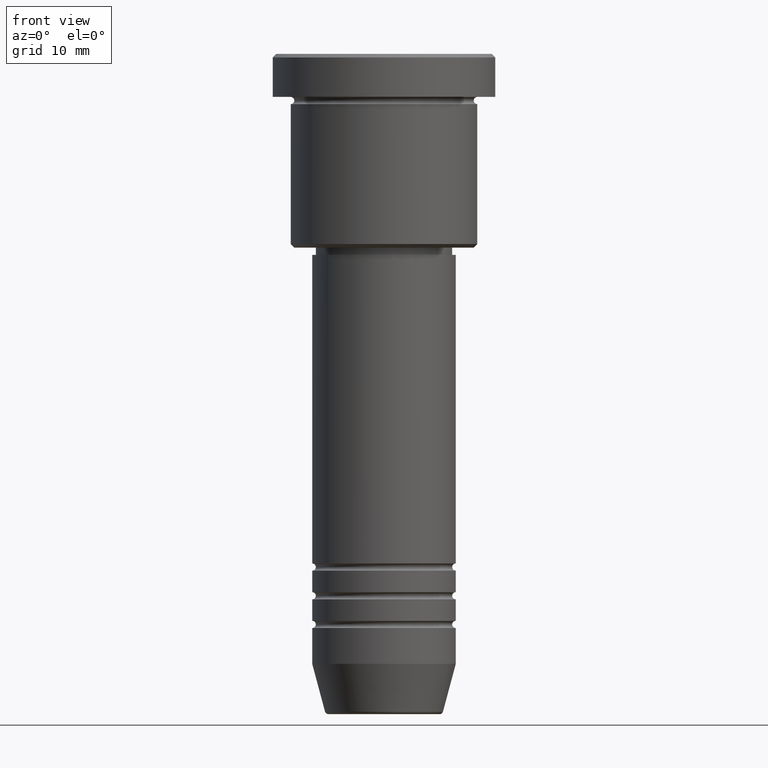
[diagram: clean part render]
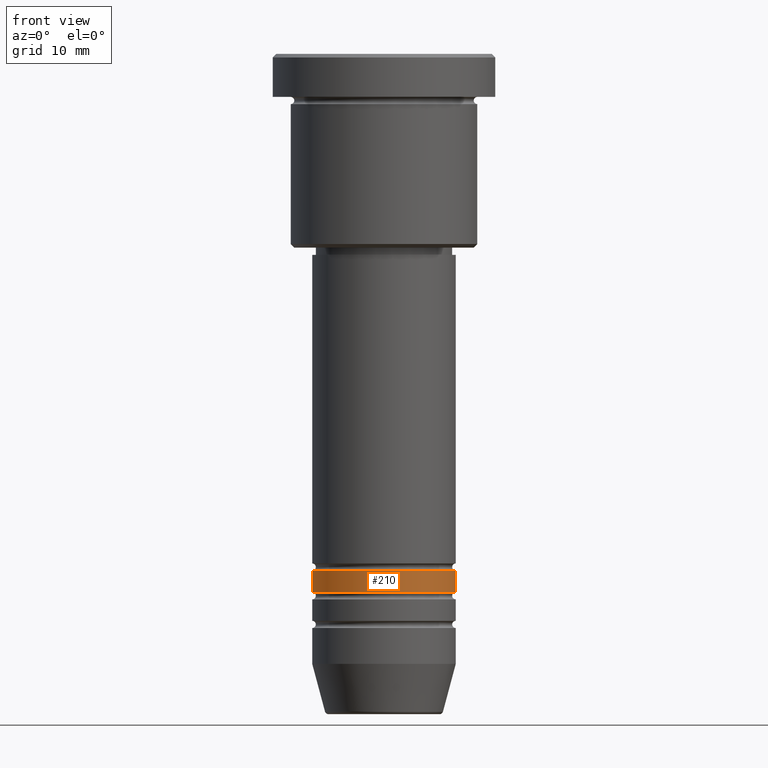
[diagram: same view with one face highlighted and labeled with its STEP entity id]
A machine part, front view. The second image highlights one B-rep face of the part: STEP entity #210.
In plain terms, the highlighted cylindrical surface (partial cylindrical patch) has radius 10 mm, axis along (-0, -0, 1).
Its self-contained STEP definition (entity closure, byte-faithful):
#5 = VERTEX_POINT ( 'NONE', #646 ) ;
#36 = AXIS2_PLACEMENT_3D ( 'NONE', #483, #740, #380 ) ;
#68 = CARTESIAN_POINT ( 'NONE',  ( 10.00000000000000178, 0.000000000000000000, -74.99999999999991473 ) ) ;
#151 = EDGE_CURVE ( 'NONE', #312, #776, #1026, .T. ) ;
#200 = DIRECTION ( 'NONE',  ( -0.000000000000000000, -0.000000000000000000, 1.000000000000000000 ) ) ;
#210 = ADVANCED_FACE ( 'NONE', ( #226 ), #668, .T. ) ;
#224 = CARTESIAN_POINT ( 'NONE',  ( 10.00000000000000178, 0.000000000000000000, 0.000000000000000000 ) ) ;
#225 = EDGE_CURVE ( 'NONE', #776, #5, #981, .T. ) ;
#226 = FACE_OUTER_BOUND ( 'NONE', #789, .T. ) ;
#292 = VERTEX_POINT ( 'NONE', #68 ) ;
#310 = LINE ( 'NONE', #224, #504 ) ;
#312 = VERTEX_POINT ( 'NONE', #597 ) ;
#349 = AXIS2_PLACEMENT_3D ( 'NONE', #848, #558, #389 ) ;
#366 = ORIENTED_EDGE ( 'NONE', *, *, #569, .T. ) ;
#380 = DIRECTION ( 'NONE',  ( 1.000000000000000000, 0.000000000000000000, 0.000000000000000000 ) ) ;
#389 = DIRECTION ( 'NONE',  ( 1.000000000000000000, 0.000000000000000000, 0.000000000000000000 ) ) ;
#430 = CIRCLE ( 'NONE', #36, 10.00000000000000178 ) ;
#454 = ORIENTED_EDGE ( 'NONE', *, *, #225, .F. ) ;
#475 = DIRECTION ( 'NONE',  ( -0.000000000000000000, -0.000000000000000000, 1.000000000000000000 ) ) ;
#483 = CARTESIAN_POINT ( 'NONE',  ( 0.000000000000000000, 0.000000000000000000, -74.99999999999991473 ) ) ;
#492 = CARTESIAN_POINT ( 'NONE',  ( -10.00000000000000178, 1.224646799147353454E-15, 0.000000000000000000 ) ) ;
#504 = VECTOR ( 'NONE', #1131, 1000.000000000000000 ) ;
#558 = DIRECTION ( 'NONE',  ( -0.000000000000000000, -0.000000000000000000, 1.000000000000000000 ) ) ;
#569 = EDGE_CURVE ( 'NONE', #312, #292, #430, .T. ) ;
#574 = EDGE_CURVE ( 'NONE', #292, #5, #310, .T. ) ;
#581 = CARTESIAN_POINT ( 'NONE',  ( 0.000000000000000000, 0.000000000000000000, 0.000000000000000000 ) ) ;
#595 = ORIENTED_EDGE ( 'NONE', *, *, #574, .T. ) ;
#597 = CARTESIAN_POINT ( 'NONE',  ( -10.00000000000000178, 1.224646799147353454E-15, -74.99999999999991473 ) ) ;
#646 = CARTESIAN_POINT ( 'NONE',  ( 10.00000000000000000, 0.000000000000000000, -71.99999999999990052 ) ) ;
#668 = CYLINDRICAL_SURFACE ( 'NONE', #865, 10.00000000000000178 ) ;
#740 = DIRECTION ( 'NONE',  ( -0.000000000000000000, -0.000000000000000000, 1.000000000000000000 ) ) ;
#776 = VERTEX_POINT ( 'NONE', #884 ) ;
#789 = EDGE_LOOP ( 'NONE', ( #1111, #366, #595, #454 ) ) ;
#848 = CARTESIAN_POINT ( 'NONE',  ( 0.000000000000000000, 0.000000000000000000, -71.99999999999990052 ) ) ;
#865 = AXIS2_PLACEMENT_3D ( 'NONE', #581, #200, #1132 ) ;
#884 = CARTESIAN_POINT ( 'NONE',  ( -10.00000000000000000, 1.224646799147353256E-15, -71.99999999999990052 ) ) ;
#981 = CIRCLE ( 'NONE', #349, 10.00000000000000000 ) ;
#1026 = LINE ( 'NONE', #492, #1081 ) ;
#1081 = VECTOR ( 'NONE', #475, 1000.000000000000000 ) ;
#1111 = ORIENTED_EDGE ( 'NONE', *, *, #151, .F. ) ;
#1131 = DIRECTION ( 'NONE',  ( -0.000000000000000000, -0.000000000000000000, 1.000000000000000000 ) ) ;
#1132 = DIRECTION ( 'NONE',  ( 1.000000000000000000, 0.000000000000000000, 0.000000000000000000 ) ) ;